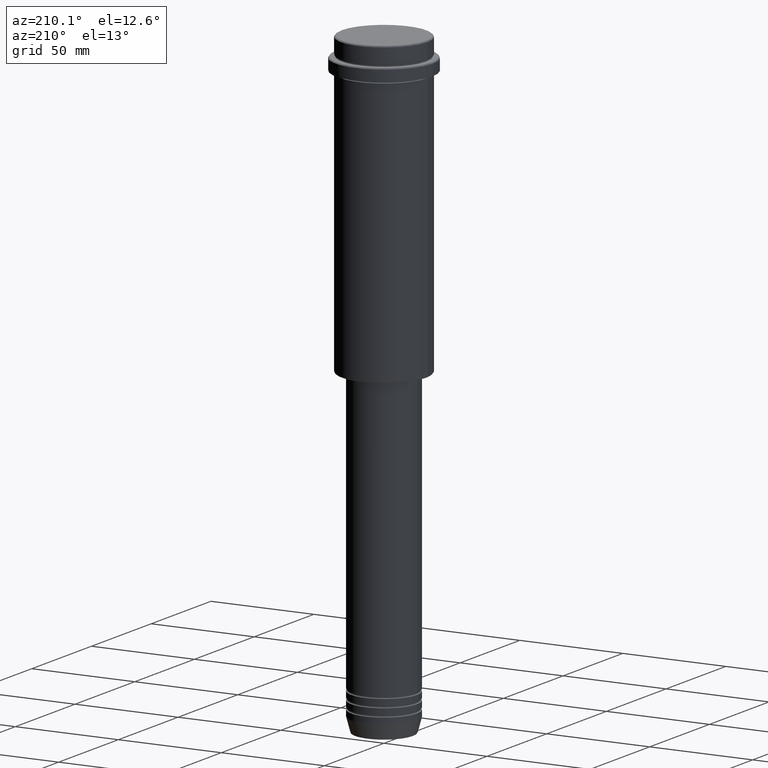
[diagram: clean part render]
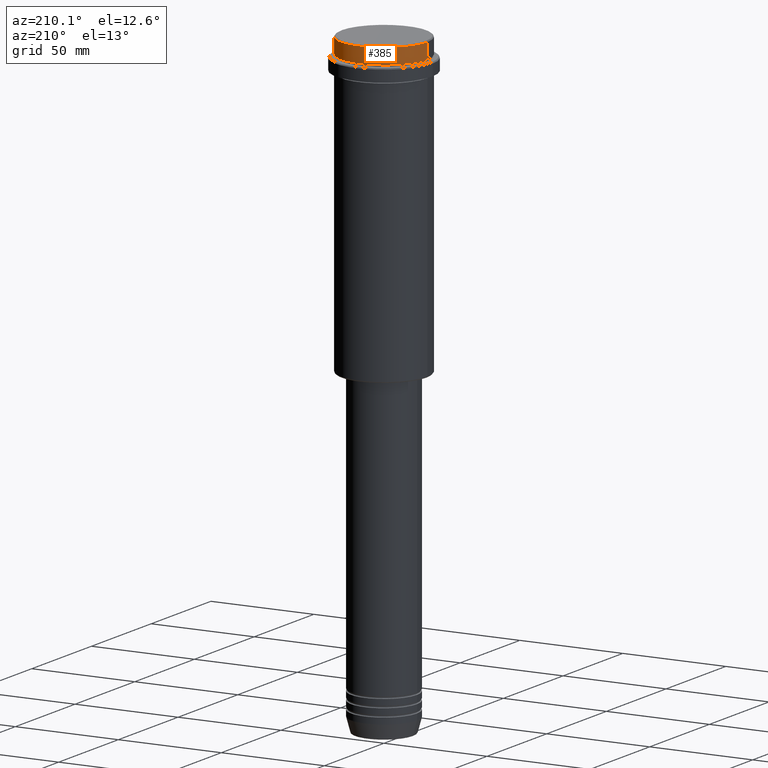
[diagram: same view with one face highlighted and labeled with its STEP entity id]
A machine part, auxiliary view. The second image highlights one B-rep face of the part: STEP entity #385.
In plain terms, the highlighted cylindrical surface (partial cylindrical patch) has radius 21 mm, axis along (-0, -0, 1).
Its self-contained STEP definition (entity closure, byte-faithful):
#13 = DIRECTION ( 'NONE',  ( -0.000000000000000000, -0.000000000000000000, 1.000000000000000000 ) ) ;
#20 = ORIENTED_EDGE ( 'NONE', *, *, #90, .T. ) ;
#25 = LINE ( 'NONE', #38, #282 ) ;
#38 = CARTESIAN_POINT ( 'NONE',  ( -21.00000000000000000, 2.571758278209441661E-15, 0.000000000000000000 ) ) ;
#62 = CARTESIAN_POINT ( 'NONE',  ( 21.00000000000000000, 0.000000000000000000, -7.999999999999998224 ) ) ;
#90 = EDGE_CURVE ( 'NONE', #440, #258, #952, .T. ) ;
#210 = DIRECTION ( 'NONE',  ( -0.000000000000000000, -0.000000000000000000, 1.000000000000000000 ) ) ;
#258 = VERTEX_POINT ( 'NONE', #876 ) ;
#282 = VECTOR ( 'NONE', #1202, 1000.000000000000000 ) ;
#310 = CARTESIAN_POINT ( 'NONE',  ( 0.000000000000000000, 0.000000000000000000, 0.000000000000000000 ) ) ;
#343 = AXIS2_PLACEMENT_3D ( 'NONE', #1287, #1180, #1190 ) ;
#373 = VERTEX_POINT ( 'NONE', #1145 ) ;
#377 = EDGE_CURVE ( 'NONE', #962, #258, #708, .T. ) ;
#385 = ADVANCED_FACE ( 'NONE', ( #1396 ), #1409, .T. ) ;
#410 = AXIS2_PLACEMENT_3D ( 'NONE', #310, #210, #1299 ) ;
#421 = EDGE_CURVE ( 'NONE', #373, #440, #25, .T. ) ;
#433 = CIRCLE ( 'NONE', #1128, 21.00000000000000000 ) ;
#440 = VERTEX_POINT ( 'NONE', #459 ) ;
#459 = CARTESIAN_POINT ( 'NONE',  ( -21.00000000000000000, 2.571758278209441661E-15, -0.4999999999999553690 ) ) ;
#495 = VECTOR ( 'NONE', #1155, 1000.000000000000000 ) ;
#646 = CARTESIAN_POINT ( 'NONE',  ( 0.000000000000000000, 0.000000000000000000, -7.999999999999998224 ) ) ;
#708 = LINE ( 'NONE', #715, #495 ) ;
#715 = CARTESIAN_POINT ( 'NONE',  ( 21.00000000000000000, 0.000000000000000000, 0.000000000000000000 ) ) ;
#753 = EDGE_LOOP ( 'NONE', ( #760, #1137, #20, #1068 ) ) ;
#760 = ORIENTED_EDGE ( 'NONE', *, *, #1163, .T. ) ;
#876 = CARTESIAN_POINT ( 'NONE',  ( 21.00000000000000000, 0.000000000000000000, -0.4999999999999553690 ) ) ;
#952 = CIRCLE ( 'NONE', #343, 21.00000000000000000 ) ;
#962 = VERTEX_POINT ( 'NONE', #62 ) ;
#973 = DIRECTION ( 'NONE',  ( 1.000000000000000000, 0.000000000000000000, 0.000000000000000000 ) ) ;
#1068 = ORIENTED_EDGE ( 'NONE', *, *, #377, .F. ) ;
#1128 = AXIS2_PLACEMENT_3D ( 'NONE', #646, #13, #973 ) ;
#1137 = ORIENTED_EDGE ( 'NONE', *, *, #421, .T. ) ;
#1145 = CARTESIAN_POINT ( 'NONE',  ( -21.00000000000000000, 2.571758278209441661E-15, -7.999999999999998224 ) ) ;
#1155 = DIRECTION ( 'NONE',  ( -0.000000000000000000, -0.000000000000000000, 1.000000000000000000 ) ) ;
#1163 = EDGE_CURVE ( 'NONE', #962, #373, #433, .T. ) ;
#1180 = DIRECTION ( 'NONE',  ( 0.000000000000000000, 0.000000000000000000, -1.000000000000000000 ) ) ;
#1190 = DIRECTION ( 'NONE',  ( 1.000000000000000000, 0.000000000000000000, 0.000000000000000000 ) ) ;
#1202 = DIRECTION ( 'NONE',  ( -0.000000000000000000, -0.000000000000000000, 1.000000000000000000 ) ) ;
#1287 = CARTESIAN_POINT ( 'NONE',  ( 0.000000000000000000, 0.000000000000000000, -0.4999999999999553690 ) ) ;
#1299 = DIRECTION ( 'NONE',  ( 1.000000000000000000, 0.000000000000000000, 0.000000000000000000 ) ) ;
#1396 = FACE_OUTER_BOUND ( 'NONE', #753, .T. ) ;
#1409 = CYLINDRICAL_SURFACE ( 'NONE', #410, 21.00000000000000000 ) ;